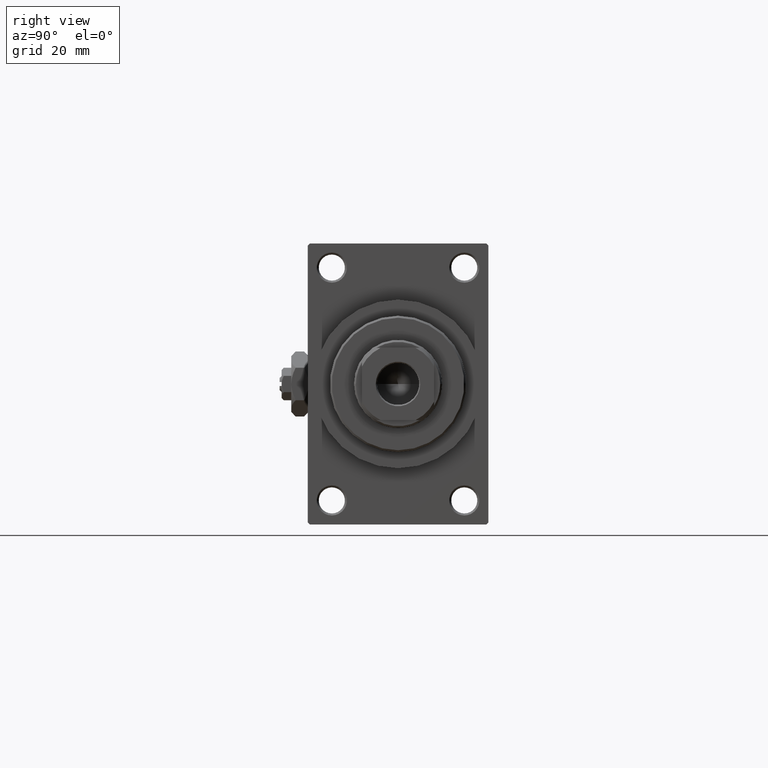
[diagram: clean part render]
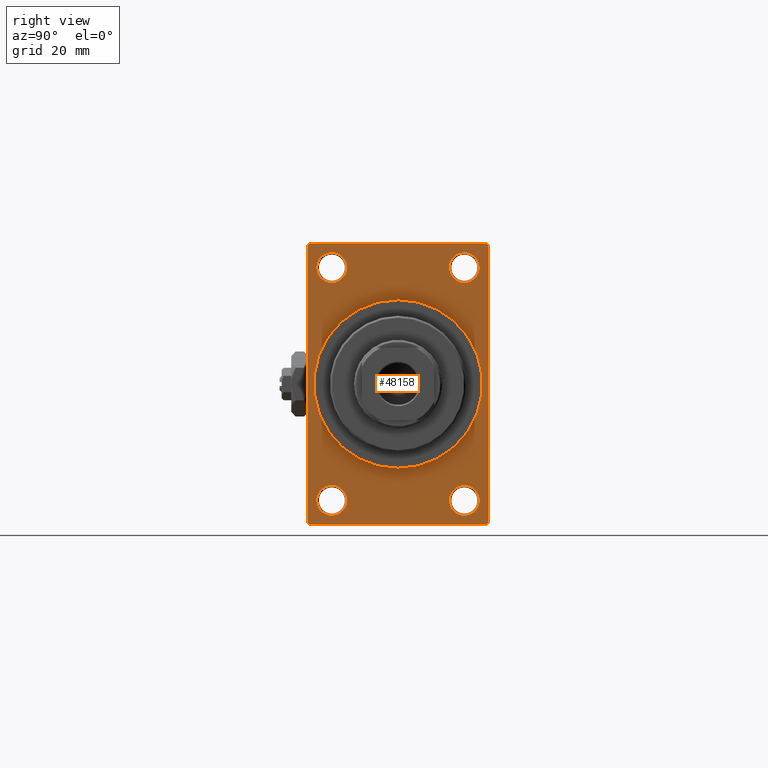
[diagram: same view with one face highlighted and labeled with its STEP entity id]
A machine part, right view. The second image highlights one B-rep face of the part: STEP entity #48158.
In plain terms, the highlighted planar face has unit normal (-1, 0, 0).
Its self-contained STEP definition (entity closure, byte-faithful):
#51 = AXIS2_PLACEMENT_3D ( 'NONE', #28384, #5547, #6036 ) ;
#315 = CIRCLE ( 'NONE', #6650, 21.00000000000000000 ) ;
#2170 = EDGE_LOOP ( 'NONE', ( #26670, #40807 ) ) ;
#2245 = AXIS2_PLACEMENT_3D ( 'NONE', #46402, #27547, #36197 ) ;
#2633 = DIRECTION ( 'NONE',  ( 0.000000000000000000, 0.000000000000000000, -1.000000000000000000 ) ) ;
#2920 = ORIENTED_EDGE ( 'NONE', *, *, #6967, .F. ) ;
#3216 = ORIENTED_EDGE ( 'NONE', *, *, #17289, .F. ) ;
#3364 = LINE ( 'NONE', #26200, #21987 ) ;
#4454 = ORIENTED_EDGE ( 'NONE', *, *, #39361, .T. ) ;
#4472 = DIRECTION ( 'NONE',  ( 0.000000000000000000, 0.000000000000000000, 1.000000000000000000 ) ) ;
#5012 = DIRECTION ( 'NONE',  ( -1.000000000000000000, -0.000000000000000000, -0.000000000000000000 ) ) ;
#5194 = EDGE_CURVE ( 'NONE', #20371, #14930, #35909, .T. ) ;
#5394 = EDGE_LOOP ( 'NONE', ( #34501, #32094 ) ) ;
#5444 = DIRECTION ( 'NONE',  ( -1.000000000000000000, -0.000000000000000000, -0.000000000000000000 ) ) ;
#5473 = EDGE_CURVE ( 'NONE', #21636, #16172, #5516, .T. ) ;
#5516 = LINE ( 'NONE', #20667, #35140 ) ;
#5547 = DIRECTION ( 'NONE',  ( -1.000000000000000000, -0.000000000000000000, -0.000000000000000000 ) ) ;
#5857 = LINE ( 'NONE', #28693, #27148 ) ;
#5909 = FACE_BOUND ( 'NONE', #48248, .T. ) ;
#6036 = DIRECTION ( 'NONE',  ( 0.000000000000000000, 0.000000000000000000, 1.000000000000000000 ) ) ;
#6391 = VERTEX_POINT ( 'NONE', #24502 ) ;
#6475 = VERTEX_POINT ( 'NONE', #33183 ) ;
#6650 = AXIS2_PLACEMENT_3D ( 'NONE', #38565, #38807, #42055 ) ;
#6755 = VECTOR ( 'NONE', #47324, 1000.000000000000000 ) ;
#6967 = EDGE_CURVE ( 'NONE', #41866, #6391, #315, .T. ) ;
#7213 = CARTESIAN_POINT ( 'NONE',  ( 114.9999999999999858, 22.49999999999999645, -35.00000000000000000 ) ) ;
#7395 = AXIS2_PLACEMENT_3D ( 'NONE', #30976, #46101, #16076 ) ;
#7798 = AXIS2_PLACEMENT_3D ( 'NONE', #24299, #5444, #42681 ) ;
#8217 = DIRECTION ( 'NONE',  ( -1.000000000000000000, -0.000000000000000000, -0.000000000000000000 ) ) ;
#8365 = DIRECTION ( 'NONE',  ( -0.000000000000000000, 0.7071067811865474617, 0.7071067811865474617 ) ) ;
#8385 = CARTESIAN_POINT ( 'NONE',  ( 114.9999999999999858, 22.00000000000002132, -35.00000000000000000 ) ) ;
#8407 = EDGE_CURVE ( 'NONE', #6391, #41866, #23343, .T. ) ;
#8437 = ORIENTED_EDGE ( 'NONE', *, *, #23690, .F. ) ;
#8921 = ORIENTED_EDGE ( 'NONE', *, *, #18486, .T. ) ;
#9380 = PLANE ( 'NONE',  #39755 ) ;
#9824 = DIRECTION ( 'NONE',  ( -0.000000000000000000, -0.7071067811865474617, -0.7071067811865474617 ) ) ;
#9842 = EDGE_CURVE ( 'NONE', #43795, #22254, #9850, .T. ) ;
#9850 = LINE ( 'NONE', #17551, #6755 ) ;
#10033 = CARTESIAN_POINT ( 'NONE',  ( 114.9999999999999858, -16.50000000000000000, -25.24999999999997868 ) ) ;
#10116 = CARTESIAN_POINT ( 'NONE',  ( 114.9999999999999858, -22.50000000000000355, 34.50000000000002842 ) ) ;
#10841 = AXIS2_PLACEMENT_3D ( 'NONE', #40178, #14368, #25045 ) ;
#10961 = CIRCLE ( 'NONE', #2245, 3.750000000000020872 ) ;
#10994 = CIRCLE ( 'NONE', #45079, 3.750000000000013767 ) ;
#11120 = ORIENTED_EDGE ( 'NONE', *, *, #21832, .T. ) ;
#11719 = DIRECTION ( 'NONE',  ( 0.000000000000000000, 0.000000000000000000, -1.000000000000000000 ) ) ;
#11834 = CARTESIAN_POINT ( 'NONE',  ( 114.9999999999999858, 22.49999999999999645, 34.50000000000000000 ) ) ;
#12257 = AXIS2_PLACEMENT_3D ( 'NONE', #36667, #21546, #25500 ) ;
#12331 = CARTESIAN_POINT ( 'NONE',  ( 114.9999999999999858, 22.49999999999999645, -34.50000000000002842 ) ) ;
#14368 = DIRECTION ( 'NONE',  ( -1.000000000000000000, -0.000000000000000000, -0.000000000000000000 ) ) ;
#14385 = VERTEX_POINT ( 'NONE', #19913 ) ;
#14785 = DIRECTION ( 'NONE',  ( 0.000000000000000000, -0.7071067811865378028, 0.7071067811865573427 ) ) ;
#14930 = VERTEX_POINT ( 'NONE', #43875 ) ;
#14949 = ORIENTED_EDGE ( 'NONE', *, *, #9842, .T. ) ;
#14999 = VERTEX_POINT ( 'NONE', #10116 ) ;
#15164 = DIRECTION ( 'NONE',  ( 0.000000000000000000, -1.000000000000000000, 0.000000000000000000 ) ) ;
#15448 = LINE ( 'NONE', #45710, #22876 ) ;
#16076 = DIRECTION ( 'NONE',  ( 0.000000000000000000, 0.000000000000000000, 1.000000000000000000 ) ) ;
#16172 = VERTEX_POINT ( 'NONE', #25215 ) ;
#17289 = EDGE_CURVE ( 'NONE', #29258, #6475, #48044, .T. ) ;
#17551 = CARTESIAN_POINT ( 'NONE',  ( 114.9999999999999858, -22.00000000000001776, -35.00000000000000000 ) ) ;
#17573 = DIRECTION ( 'NONE',  ( -1.000000000000000000, 0.000000000000000000, -0.000000000000000000 ) ) ;
#17774 = CARTESIAN_POINT ( 'NONE',  ( 114.9999999999999858, -22.50000000000000355, -34.50000000000000000 ) ) ;
#18486 = EDGE_CURVE ( 'NONE', #29258, #21636, #3364, .T. ) ;
#19046 = EDGE_CURVE ( 'NONE', #28797, #6475, #23992, .T. ) ;
#19167 = AXIS2_PLACEMENT_3D ( 'NONE', #46224, #5012, #34813 ) ;
#19913 = CARTESIAN_POINT ( 'NONE',  ( 114.9999999999999858, 16.50000000000000000, 25.24999999999998934 ) ) ;
#20007 = EDGE_CURVE ( 'NONE', #41621, #42234, #41083, .T. ) ;
#20056 = EDGE_CURVE ( 'NONE', #42234, #41621, #10961, .T. ) ;
#20300 = ORIENTED_EDGE ( 'NONE', *, *, #8407, .F. ) ;
#20371 = VERTEX_POINT ( 'NONE', #10033 ) ;
#20565 = FACE_BOUND ( 'NONE', #34954, .T. ) ;
#20667 = CARTESIAN_POINT ( 'NONE',  ( 114.9999999999999858, 22.49999999999999645, 35.00000000000000000 ) ) ;
#21546 = DIRECTION ( 'NONE',  ( 1.000000000000000000, 0.000000000000000000, 0.000000000000000000 ) ) ;
#21634 = ORIENTED_EDGE ( 'NONE', *, *, #19046, .T. ) ;
#21636 = VERTEX_POINT ( 'NONE', #28877 ) ;
#21832 = EDGE_CURVE ( 'NONE', #14999, #43795, #15448, .T. ) ;
#21980 = CARTESIAN_POINT ( 'NONE',  ( 114.9999999999999858, -16.50000000000000000, 32.75000000000002132 ) ) ;
#21987 = VECTOR ( 'NONE', #14785, 1000.000000000000000 ) ;
#22020 = VECTOR ( 'NONE', #8365, 1000.000000000000114 ) ;
#22237 = AXIS2_PLACEMENT_3D ( 'NONE', #23347, #8217, #4472 ) ;
#22254 = VERTEX_POINT ( 'NONE', #24282 ) ;
#22474 = CARTESIAN_POINT ( 'NONE',  ( 114.9999999999999858, -16.50000000000000000, 29.00000000000000711 ) ) ;
#22620 = VERTEX_POINT ( 'NONE', #21980 ) ;
#22679 = VERTEX_POINT ( 'NONE', #26202 ) ;
#22876 = VECTOR ( 'NONE', #11719, 1000.000000000000000 ) ;
#22914 = CARTESIAN_POINT ( 'NONE',  ( 114.9999999999999858, 22.49999999999999645, 35.00000000000000000 ) ) ;
#23343 = CIRCLE ( 'NONE', #12257, 21.00000000000000000 ) ;
#23347 = CARTESIAN_POINT ( 'NONE',  ( 114.9999999999999858, -16.50000000000000000, -28.99999999999999289 ) ) ;
#23690 = EDGE_CURVE ( 'NONE', #28797, #22254, #33520, .T. ) ;
#23992 = LINE ( 'NONE', #12331, #22020 ) ;
#24225 = EDGE_LOOP ( 'NONE', ( #2920, #20300 ) ) ;
#24282 = CARTESIAN_POINT ( 'NONE',  ( 114.9999999999999858, -22.00000000000000355, -35.00000000000000000 ) ) ;
#24299 = CARTESIAN_POINT ( 'NONE',  ( 114.9999999999999858, 16.50000000000000000, -28.99999999999999289 ) ) ;
#24502 = CARTESIAN_POINT ( 'NONE',  ( 114.9999999999999858, 2.571758278209441661E-15, -21.00000000000000000 ) ) ;
#25045 = DIRECTION ( 'NONE',  ( 0.000000000000000000, 0.000000000000000000, 1.000000000000000000 ) ) ;
#25130 = CIRCLE ( 'NONE', #10841, 3.750000000000017319 ) ;
#25215 = CARTESIAN_POINT ( 'NONE',  ( 114.9999999999999858, -22.00000000000001776, 35.00000000000000000 ) ) ;
#25438 = EDGE_CURVE ( 'NONE', #14930, #20371, #48364, .T. ) ;
#25500 = DIRECTION ( 'NONE',  ( 0.000000000000000000, 0.000000000000000000, -1.000000000000000000 ) ) ;
#26200 = CARTESIAN_POINT ( 'NONE',  ( 114.9999999999999858, 22.00000000000001066, 35.00000000000000000 ) ) ;
#26202 = CARTESIAN_POINT ( 'NONE',  ( 114.9999999999999858, 16.50000000000000000, 32.75000000000002132 ) ) ;
#26412 = ORIENTED_EDGE ( 'NONE', *, *, #5194, .T. ) ;
#26670 = ORIENTED_EDGE ( 'NONE', *, *, #20056, .T. ) ;
#27148 = VECTOR ( 'NONE', #9824, 1000.000000000000114 ) ;
#27273 = EDGE_CURVE ( 'NONE', #14385, #22679, #42115, .T. ) ;
#27547 = DIRECTION ( 'NONE',  ( -1.000000000000000000, -0.000000000000000000, -0.000000000000000000 ) ) ;
#27677 = EDGE_LOOP ( 'NONE', ( #11120, #14949, #8437, #21634, #3216, #8921, #48439, #30250 ) ) ;
#28251 = CARTESIAN_POINT ( 'NONE',  ( 114.9999999999999858, 0.000000000000000000, 0.000000000000000000 ) ) ;
#28384 = CARTESIAN_POINT ( 'NONE',  ( 114.9999999999999858, -16.50000000000000000, 29.00000000000000711 ) ) ;
#28501 = VECTOR ( 'NONE', #15164, 1000.000000000000000 ) ;
#28693 = CARTESIAN_POINT ( 'NONE',  ( 114.9999999999999858, -22.50000000000000355, 34.50000000000002842 ) ) ;
#28797 = VERTEX_POINT ( 'NONE', #8385 ) ;
#28877 = CARTESIAN_POINT ( 'NONE',  ( 114.9999999999999858, 22.00000000000001066, 35.00000000000000000 ) ) ;
#28988 = FACE_BOUND ( 'NONE', #24225, .T. ) ;
#29258 = VERTEX_POINT ( 'NONE', #11834 ) ;
#29506 = EDGE_CURVE ( 'NONE', #22620, #31521, #42076, .T. ) ;
#30250 = ORIENTED_EDGE ( 'NONE', *, *, #30303, .T. ) ;
#30303 = EDGE_CURVE ( 'NONE', #16172, #14999, #5857, .T. ) ;
#30847 = CARTESIAN_POINT ( 'NONE',  ( 114.9999999999999858, -16.50000000000000000, 25.24999999999999289 ) ) ;
#30976 = CARTESIAN_POINT ( 'NONE',  ( 114.9999999999999858, -16.50000000000000000, -28.99999999999999289 ) ) ;
#31116 = ORIENTED_EDGE ( 'NONE', *, *, #25438, .T. ) ;
#31521 = VERTEX_POINT ( 'NONE', #30847 ) ;
#31978 = FACE_OUTER_BOUND ( 'NONE', #27677, .T. ) ;
#32094 = ORIENTED_EDGE ( 'NONE', *, *, #34657, .T. ) ;
#32471 = FACE_BOUND ( 'NONE', #5394, .T. ) ;
#33183 = CARTESIAN_POINT ( 'NONE',  ( 114.9999999999999858, 22.49999999999999645, -34.50000000000002842 ) ) ;
#33296 = ORIENTED_EDGE ( 'NONE', *, *, #29506, .T. ) ;
#33520 = LINE ( 'NONE', #7213, #28501 ) ;
#34501 = ORIENTED_EDGE ( 'NONE', *, *, #27273, .T. ) ;
#34657 = EDGE_CURVE ( 'NONE', #22679, #14385, #25130, .T. ) ;
#34813 = DIRECTION ( 'NONE',  ( 0.000000000000000000, 0.000000000000000000, 1.000000000000000000 ) ) ;
#34954 = EDGE_LOOP ( 'NONE', ( #31116, #26412 ) ) ;
#35140 = VECTOR ( 'NONE', #35791, 1000.000000000000000 ) ;
#35791 = DIRECTION ( 'NONE',  ( 0.000000000000000000, -1.000000000000000000, 0.000000000000000000 ) ) ;
#35909 = CIRCLE ( 'NONE', #7395, 3.750000000000020872 ) ;
#36197 = DIRECTION ( 'NONE',  ( 0.000000000000000000, 0.000000000000000000, 1.000000000000000000 ) ) ;
#36667 = CARTESIAN_POINT ( 'NONE',  ( 114.9999999999999858, 0.000000000000000000, 0.000000000000000000 ) ) ;
#37499 = CARTESIAN_POINT ( 'NONE',  ( 114.9999999999999858, 0.000000000000000000, 21.00000000000000000 ) ) ;
#38565 = CARTESIAN_POINT ( 'NONE',  ( 114.9999999999999858, 0.000000000000000000, 0.000000000000000000 ) ) ;
#38807 = DIRECTION ( 'NONE',  ( 1.000000000000000000, 0.000000000000000000, 0.000000000000000000 ) ) ;
#39361 = EDGE_CURVE ( 'NONE', #31521, #22620, #10994, .T. ) ;
#39635 = CARTESIAN_POINT ( 'NONE',  ( 114.9999999999999858, 16.50000000000000000, -32.75000000000001421 ) ) ;
#39755 = AXIS2_PLACEMENT_3D ( 'NONE', #28251, #17573, #43388 ) ;
#40144 = FACE_BOUND ( 'NONE', #2170, .T. ) ;
#40178 = CARTESIAN_POINT ( 'NONE',  ( 114.9999999999999858, 16.50000000000000000, 29.00000000000000355 ) ) ;
#40807 = ORIENTED_EDGE ( 'NONE', *, *, #20007, .T. ) ;
#41083 = CIRCLE ( 'NONE', #7798, 3.750000000000020872 ) ;
#41621 = VERTEX_POINT ( 'NONE', #48490 ) ;
#41866 = VERTEX_POINT ( 'NONE', #37499 ) ;
#42055 = DIRECTION ( 'NONE',  ( 0.000000000000000000, 0.000000000000000000, -1.000000000000000000 ) ) ;
#42076 = CIRCLE ( 'NONE', #51, 3.750000000000013767 ) ;
#42115 = CIRCLE ( 'NONE', #19167, 3.750000000000017319 ) ;
#42234 = VERTEX_POINT ( 'NONE', #39635 ) ;
#42681 = DIRECTION ( 'NONE',  ( 0.000000000000000000, 0.000000000000000000, 1.000000000000000000 ) ) ;
#43388 = DIRECTION ( 'NONE',  ( -0.000000000000000000, 0.000000000000000000, 1.000000000000000000 ) ) ;
#43795 = VERTEX_POINT ( 'NONE', #17774 ) ;
#43875 = CARTESIAN_POINT ( 'NONE',  ( 114.9999999999999858, -16.50000000000000000, -32.75000000000001421 ) ) ;
#43880 = DIRECTION ( 'NONE',  ( 0.000000000000000000, 0.000000000000000000, 1.000000000000000000 ) ) ;
#45079 = AXIS2_PLACEMENT_3D ( 'NONE', #22474, #47601, #43880 ) ;
#45710 = CARTESIAN_POINT ( 'NONE',  ( 114.9999999999999858, -22.50000000000000355, 35.00000000000000000 ) ) ;
#46101 = DIRECTION ( 'NONE',  ( -1.000000000000000000, -0.000000000000000000, -0.000000000000000000 ) ) ;
#46224 = CARTESIAN_POINT ( 'NONE',  ( 114.9999999999999858, 16.50000000000000000, 29.00000000000000355 ) ) ;
#46402 = CARTESIAN_POINT ( 'NONE',  ( 114.9999999999999858, 16.50000000000000000, -28.99999999999999289 ) ) ;
#47324 = DIRECTION ( 'NONE',  ( 0.000000000000000000, 0.7071067811865378028, -0.7071067811865573427 ) ) ;
#47601 = DIRECTION ( 'NONE',  ( -1.000000000000000000, -0.000000000000000000, -0.000000000000000000 ) ) ;
#48044 = LINE ( 'NONE', #22914, #48080 ) ;
#48080 = VECTOR ( 'NONE', #2633, 1000.000000000000000 ) ;
#48158 = ADVANCED_FACE ( 'NONE', ( #5909, #20565, #40144, #32471, #28988, #31978 ), #9380, .F. ) ;
#48248 = EDGE_LOOP ( 'NONE', ( #4454, #33296 ) ) ;
#48364 = CIRCLE ( 'NONE', #22237, 3.750000000000020872 ) ;
#48439 = ORIENTED_EDGE ( 'NONE', *, *, #5473, .T. ) ;
#48490 = CARTESIAN_POINT ( 'NONE',  ( 114.9999999999999858, 16.50000000000000000, -25.24999999999997868 ) ) ;